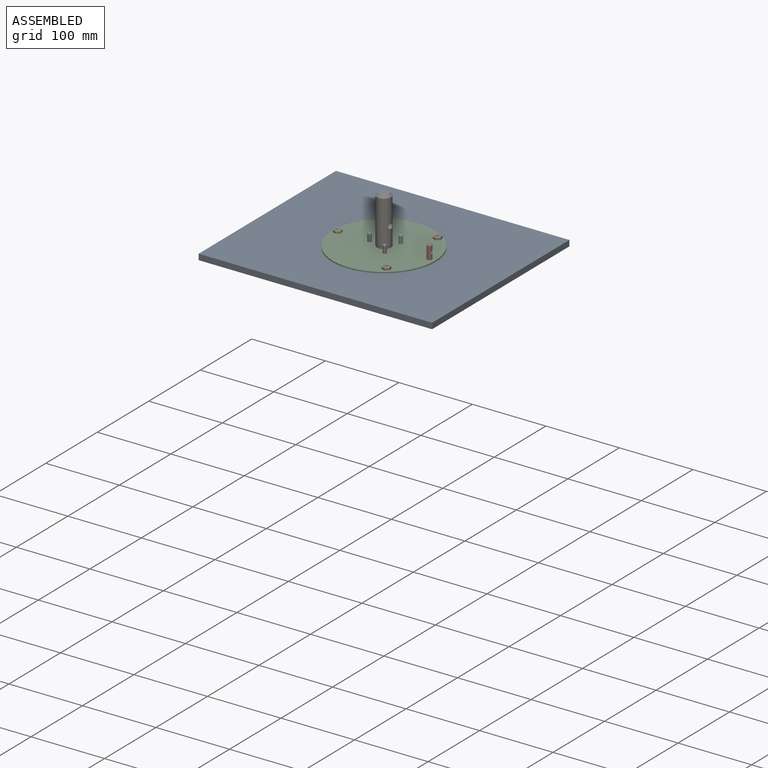
[diagram: assembled view]
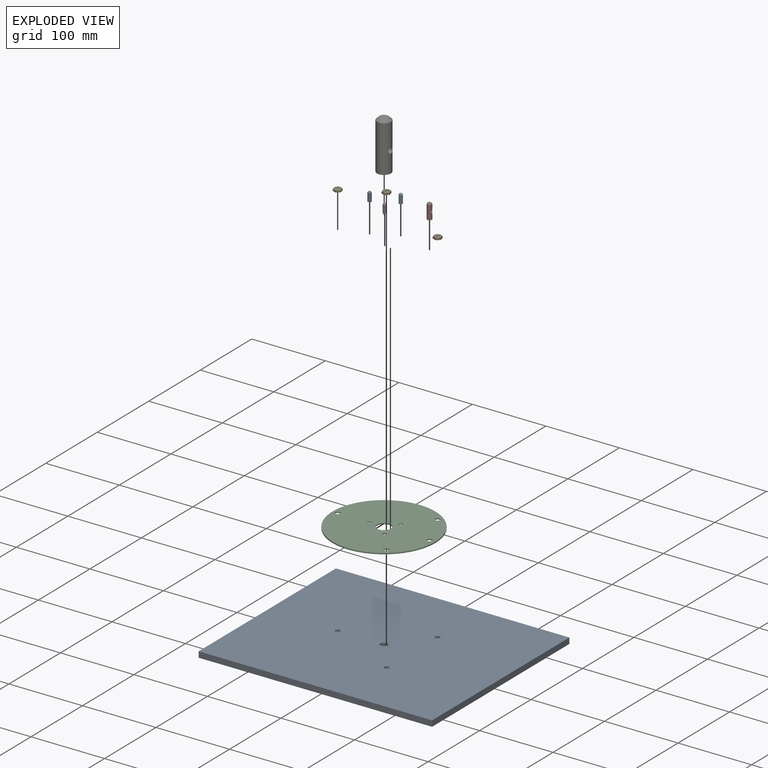
[diagram: exploded view]
GUIDED TOUR — MATED ASSEMBLY (Onshape document 5875152629a5ae1773e18e15, AutoMate assembly 5875152629a5ae1773e18e15_7c8e1c9a2186977687e85cd0_fa9db569864b751b0ebd2541_default)

This assembly has 10 components, labeled P0..P9 below (a component is one placed occurrence of a part; the same part can appear more than once), held together by 9 mates. A mate is a constraint between two components; its type names the relative motion it leaves free:
  FASTENED — locks the two components together rigidly (no relative motion).
Axis/direction vectors are unit vectors and 'through' points are millimeter coordinates, both in the assembly's world frame.

MATES
  1. FASTENED "Fastened 2": P2 <-> P7, direction (0.000, 0.000, -1.000) through (61.91, 0.00, 0.00) mm
  2. FASTENED "Fastened 7": P9 <-> P2, direction (0.000, 0.000, -1.000) through (38.10, 49.85, 1.59) mm
  3. FASTENED "Fastened 3": P2 <-> P5, direction (0.000, 0.000, -1.000) through (11.89, 15.59, 0.00) mm
  4. FASTENED "Fastened 9": P1 <-> P2, direction (0.000, 0.000, -1.000) through (37.22, -48.34, 1.59) mm
  5. FASTENED "Fastened 6": P8 <-> P6, direction (0.000, 0.000, 1.000) through (0.00, 0.00, 0.00) mm
  6. FASTENED "Fastened 5": P2 <-> P0, direction (0.000, 0.000, -1.000) through (-19.56, 0.00, 0.00) mm
  7. FASTENED "Fastened 1": P2 <-> P6, direction (0.000, 0.000, -1.000) through (0.00, 0.00, 0.00) mm
  8. FASTENED "Fastened 4": P2 <-> P3, direction (0.000, 0.000, -1.000) through (11.99, -15.56, 0.00) mm
  9. FASTENED "Fastened 8": P4 <-> P2, direction (0.000, 0.000, -1.000) through (-62.94, 0.00, 1.59) mm

ASSEMBLY ORDER
  1. P9 — the base component [order verified]
  2. P5 [order verified]
  3. P6 [order verified]
  4. P7 [order verified]
  5. P0 [order verified]
  6. P4 [order verified]
  7. P3 [order verified]
  8. P1 [order verified]
  9. P2 [order verified]
  10. P8 [order verified]
Order-tag legend:
  [order verified] — this step's position reverses a verified removal order: the component was checked to insert without passing through the ones already placed.

Of the 10 components, 4 carry the full construction recipe — the FeatureScript program that regenerates the part's solid from scratch; the rest are supplied as boundary geometry only.
Each toured component is shown spotlighted twice — in the assembled view, then in the exploded view, where a leader line traces a displaced component back to its assembled socket (saturated green if recipe-attached, orange if geometry-only; every other component desaturated gray) — followed by its recipe or geometry summary and the mates that hold it.
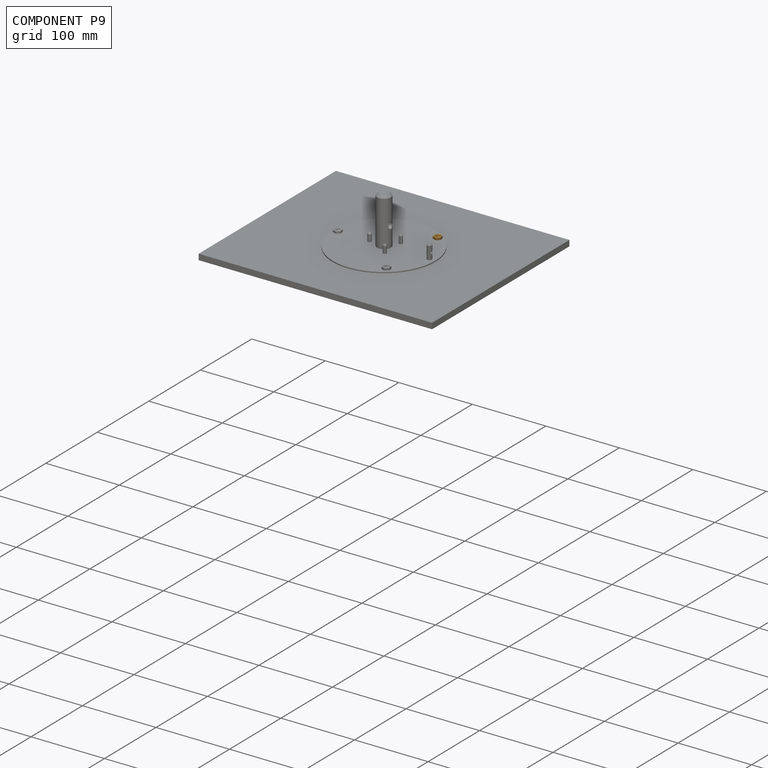
[diagram: component P9 — assembled]
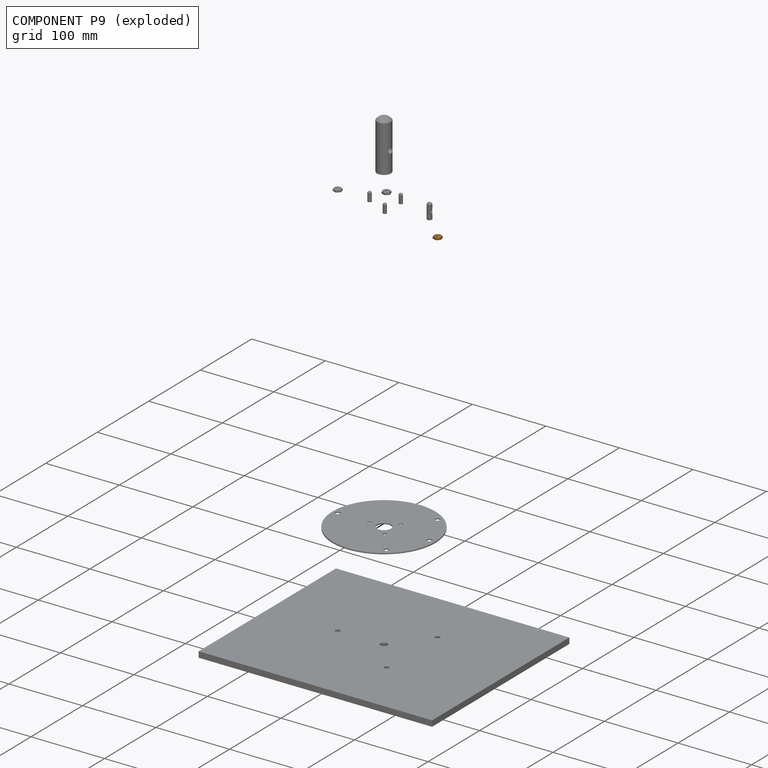
[diagram: component P9 — exploded]
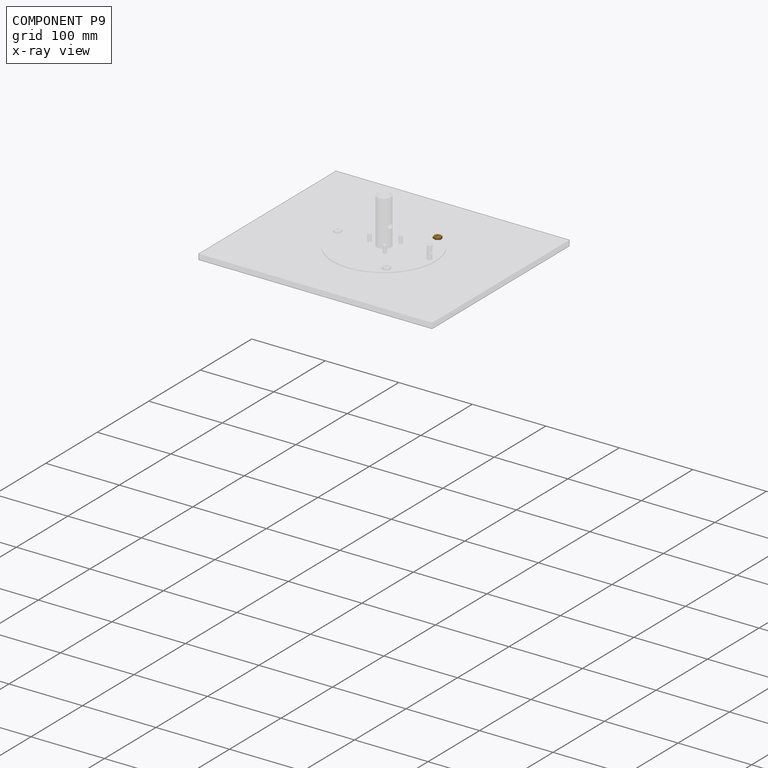
[diagram: component P9 — x-ray view]
COMPONENT P9 — geometry summary (no construction recipe available for this part):
  bounding box: 11.0 x 10.8 x 3.4 mm
  B-rep topology: 1 solid, 27 faces, 128 edges
  volume: 226 mm^3 (56% of its bounding box)
  symmetry: 2-fold rotationally symmetric about the z axis
Held by: FASTENED mate "Fastened 7" to P2.
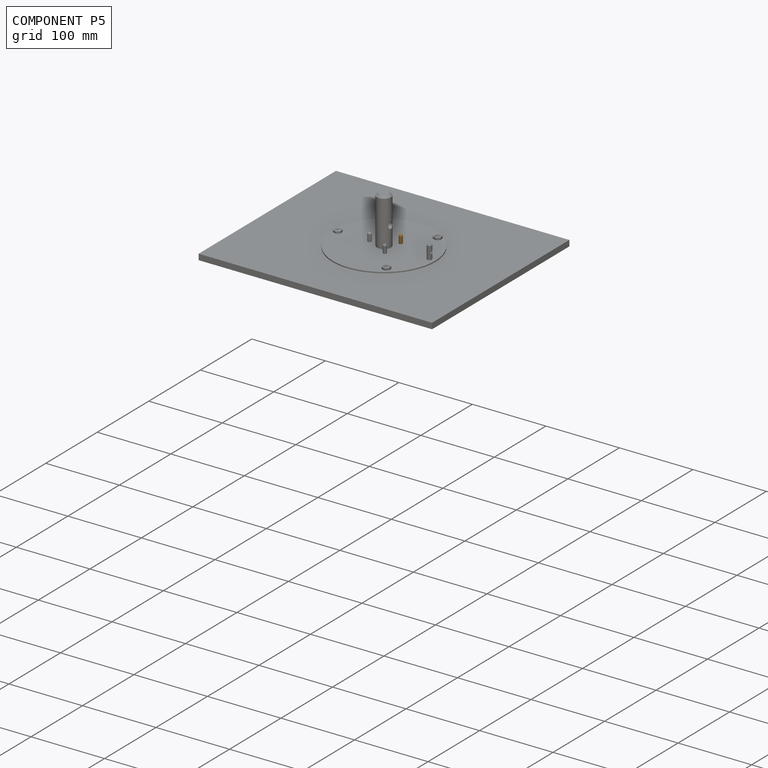
[diagram: component P5 — assembled]
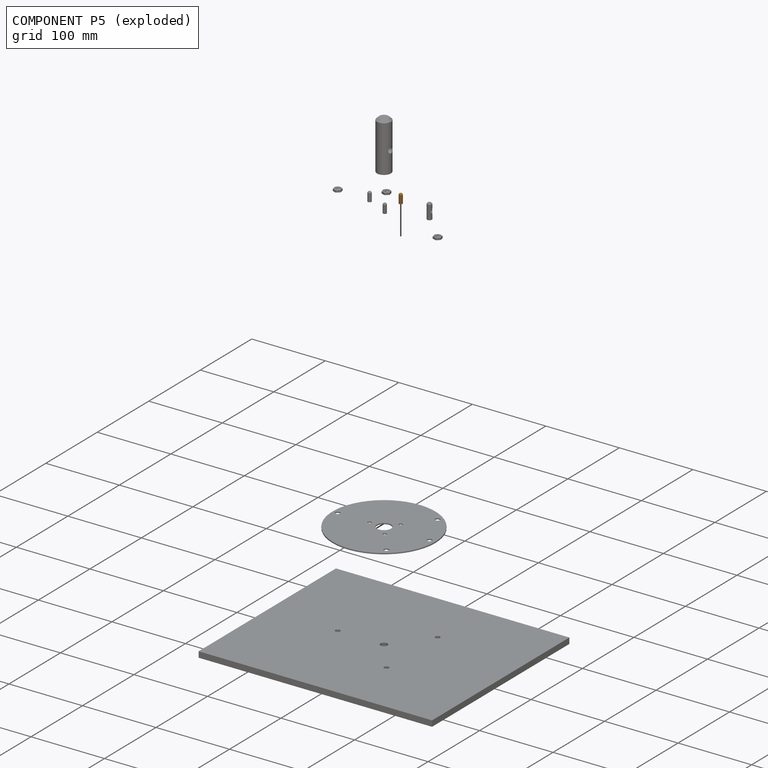
[diagram: component P5 — exploded]
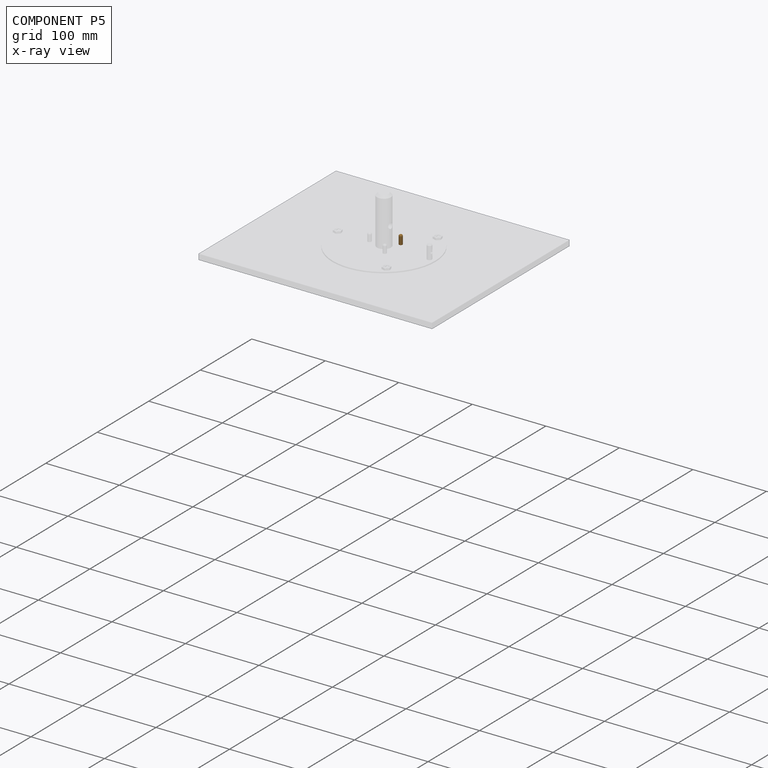
[diagram: component P5 — x-ray view]
COMPONENT P5 — geometry summary (no construction recipe available for this part):
  bounding box: 12.7 x 4.8 x 4.8 mm
  B-rep topology: 1 solid, 4 faces, 10 edges
  volume: 217 mm^3 (75% of its bounding box)
  symmetry: revolution-symmetric about the z axis through its bounding-box center; mirror-symmetric across its x mid-plane, y mid-plane
Held by: FASTENED mate "Fastened 3" to P2.
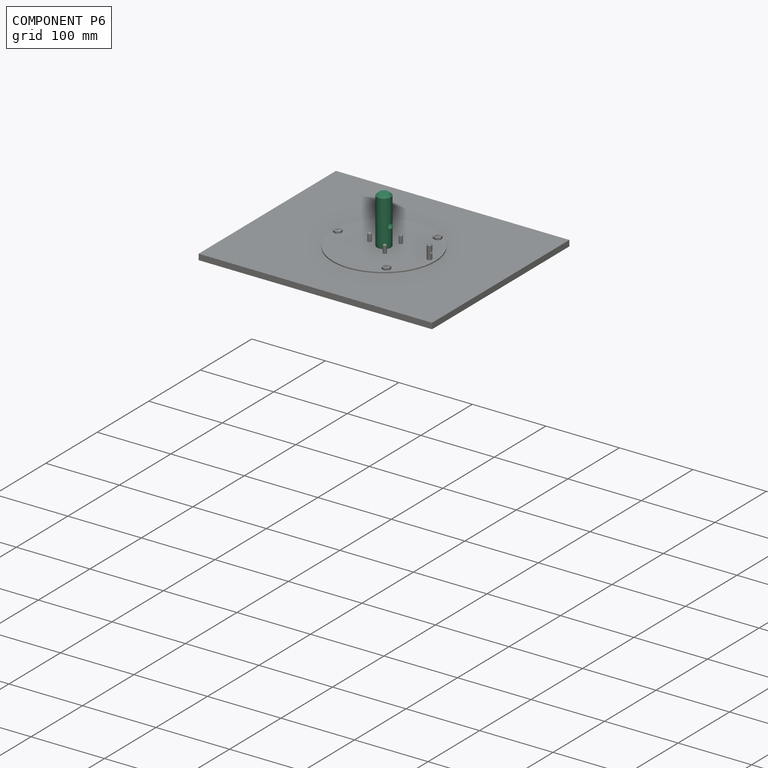
[diagram: component P6 — assembled]
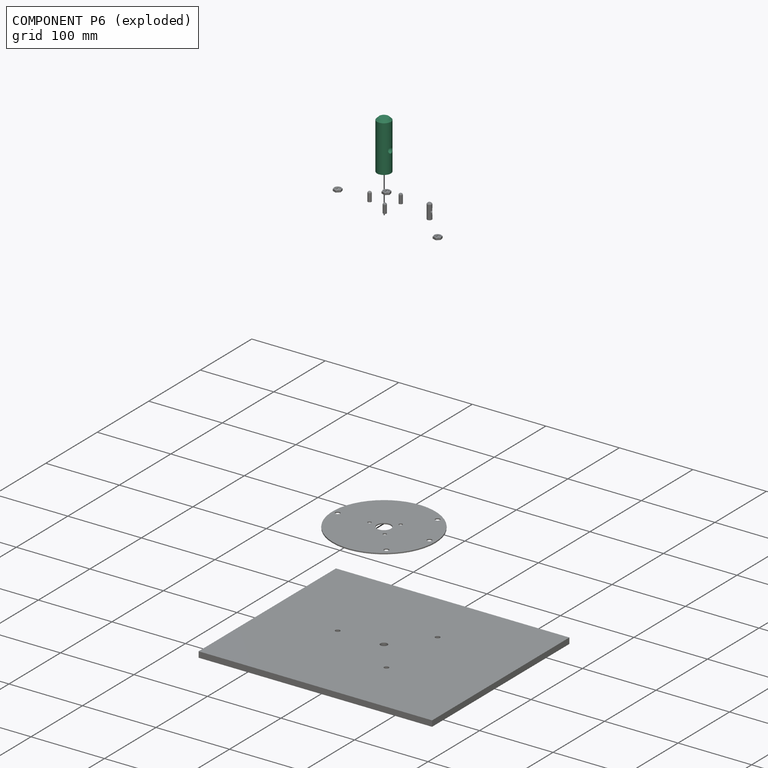
[diagram: component P6 — exploded]
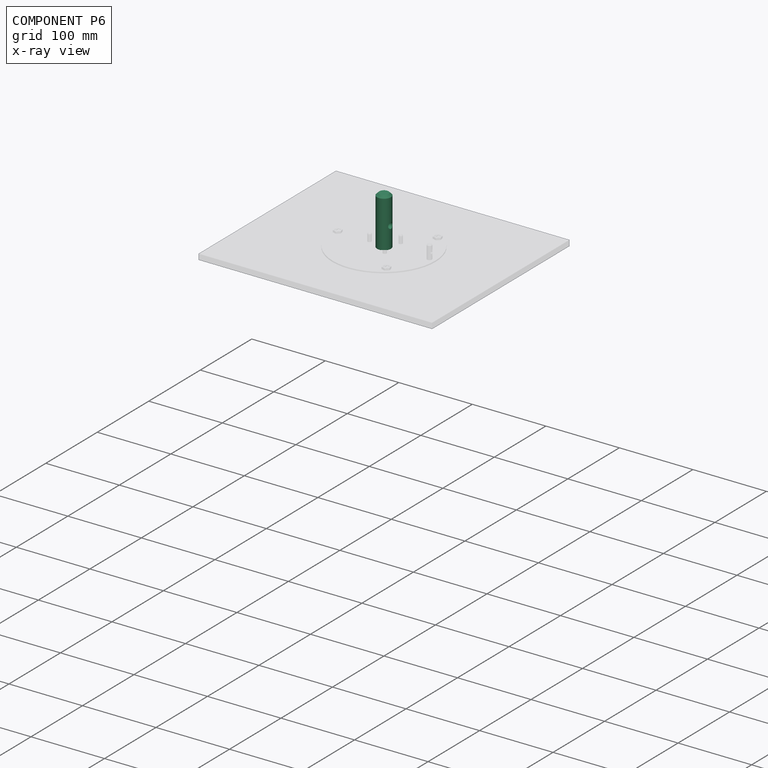
[diagram: component P6 — x-ray view]
COMPONENT P6 — recipe-attached (CADFS 00325563, mesh-verified: the recipe's output STEP matches this component's geometry to below the mesh-comparison resolution (tessellation chordal tolerance ~0.108 mm)).
Held by: FASTENED mate "Fastened 6" to P8; FASTENED mate "Fastened 1" to P2.
Construction recipe (FeatureScript — the CAD program that rebuilds this solid; sketch coordinates are in the units given by the * unit suffixes, e.g. mm):

FeatureScript 1511;
import(path : "onshape/std/geometry.fs", version : "1511.0");
import(path : "onshape/std/common.fs", version : "1511.0");
const mm = millimeter;
const VERTEX = EntityType.VERTEX;
const EDGE = EntityType.EDGE;
const FACE = EntityType.FACE;
const BODY = EntityType.BODY;
function v(x, y){return vector(x, y);}
function OD(order){return orderDisambiguation(order);}
function OSD(set){return originalSetDisambiguation(set);}
function TD(topology){return topologyDisambiguation(topology);}
function TDD(query){return trueDependencyDisambiguation(query);}
function sQuery(a, b, c) {return sketchEntityQuery(a, b, c);}

annotation { "Feature Type Name" : "Feature", "Feature Type Description" : "" }
export const myFeature = defineFeature(function(context is Context, id is Id, definition is map)
    precondition{}
    {
        {
            var Q0;
            Q0=qCreatedBy(makeId("Top.planeOp"),FACE);
            var sketch = newSketch(context, id + "F0", { "sketchPlane" : qUnion([Q0])});
            skCircle(sketch, "E0", {"center": v(0, 0) * mm, "radius": 9.53 * mm});
            skSolve(sketch);
        }
        {
            var Q0;
            Q0=makeQuery(id+"F0.imprint","IMPRINT",FACE,{"disambiguationData":[TD([[makeQuery(id+"F0.imprint","IMPRINT",EDGE,{"derivedFrom":sQuery(id+"F0.wireOp",EDGE,"E0")}),1.0]])]});
            extrude(context, id + "F1", {"entities" : qUnion([Q0]), "depth" : 66.67 * mm});
        }
        {
            var Q0;
            Q0=makeQuery(id+"F1.opExtrude","CAP_EDGE",EDGE,{"disambiguationData":[OSD([sQuery(id+"F0.wireOp",EDGE,"E0")])],"isStart":true});
            chamfer(context, id + "F2", {"entities" : qUnion([Q0]), "width" : 3.17 * mm, "tangentPropagation" : true});
        }
        {
            var Q0;
            Q0=qCreatedBy(makeId("Right.planeOp"),FACE);
            var sketch = newSketch(context, id + "F3", { "sketchPlane" : qUnion([Q0])});
            skLineSegment(sketch, "E1", {"start": v(7.94, 10.32) * mm, "end": v(7.94, 31.75) * mm});
            skLineSegment(sketch, "E2", {"start": v(7.94, 31.75) * mm, "end": v(42.7, 31.75) * mm});
            skLineSegment(sketch, "E3", {"start": v(42.7, 31.75) * mm, "end": v(42.7, 10.32) * mm});
            skLineSegment(sketch, "E4", {"start": v(42.7, 10.32) * mm, "end": v(7.94, 10.32) * mm});
            skLineSegment(sketch, "E5", {"start": v(9.53, 38.16) * mm, "end": v(9.53, 0) * mm});
            skLineSegment(sketch, "E6", {"start": v(4.75, 38.16) * mm, "end": v(4.75, 0) * mm});
            skCircle(sketch, "E7", {"center": v(0, 38.1) * mm, "radius": 3.97 * mm});
            skSolve(sketch);
        }
        {
            var Q0;
            {var subQ0=sQuery(id+"F3.wireOp",EDGE,"E3");Q0=makeQuery(id+"F3.imprint","IMPRINT",FACE,{"disambiguationData":[TD([[makeQuery(id+"F3.imprint","IMPRINT",EDGE,{"derivedFrom":subQ0}),-1.0]])]});}
            var Q1;
            {var subQ0=sQuery(id+"F3.wireOp",EDGE,"E1");Q1=makeQuery(id+"F3.imprint","IMPRINT",FACE,{"disambiguationData":[TD([[makeQuery(id+"F3.imprint","IMPRINT",EDGE,{"derivedFrom":subQ0}),-1.0]])]});}
            var Q2;
            Q2=makeQuery(id+"F3.imprint","IMPRINT",FACE,{"disambiguationData":[TD([[makeQuery(id+"F3.imprint","IMPRINT",EDGE,{"derivedFrom":sQuery(id+"F3.wireOp",EDGE,"E7")}),1.0]])]});
            extrude(context, id + "F4", {"entities" : qUnion([Q0, Q1, Q2]), "operationType" : NewBodyOperationType.REMOVE, "endBound" : BoundingType.SYMMETRIC, "depth" : 81.68 * mm});
        }
    });
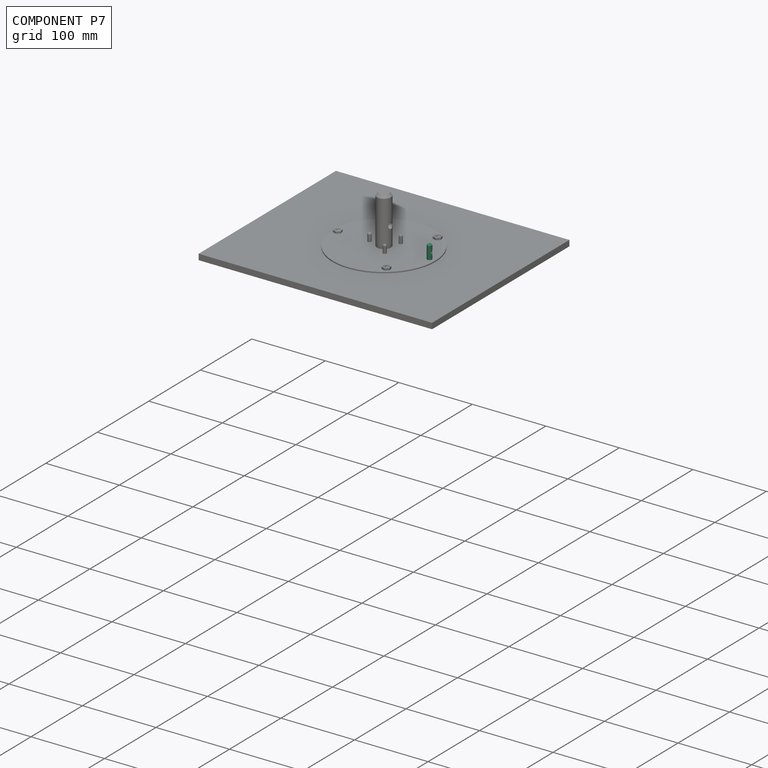
[diagram: component P7 — assembled]
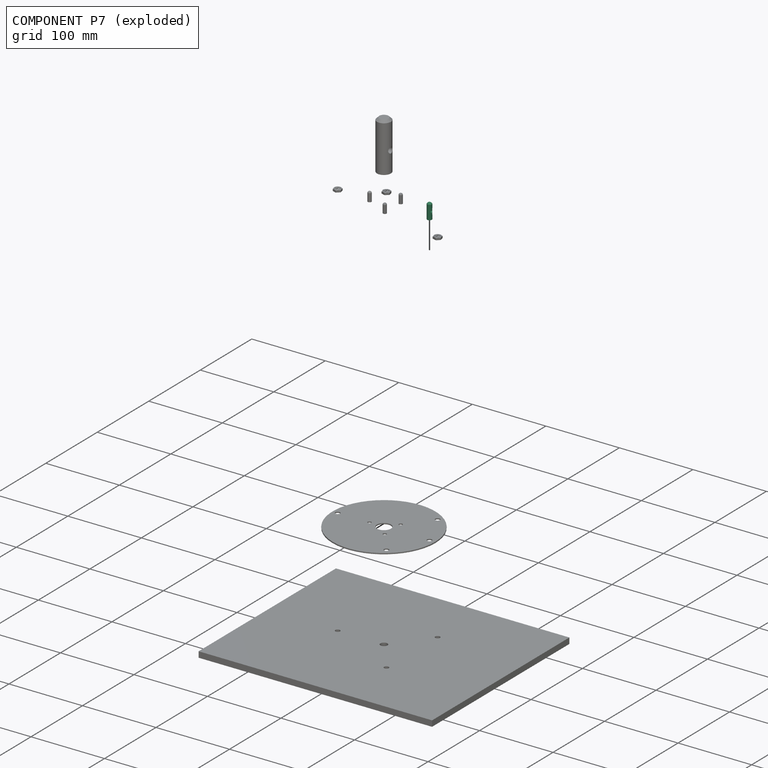
[diagram: component P7 — exploded]
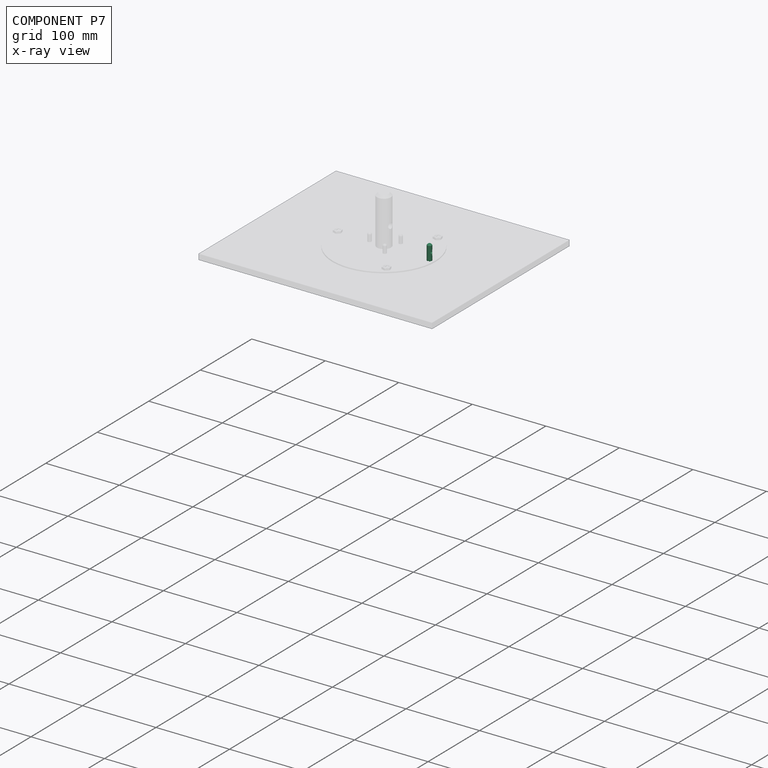
[diagram: component P7 — x-ray view]
COMPONENT P7 — recipe-attached (CADFS 00437336, mesh-verified: the recipe's output STEP matches this component's geometry to below the mesh-comparison resolution (tessellation chordal tolerance ~0.0338 mm)).
Held by: FASTENED mate "Fastened 2" to P2.
Construction recipe (FeatureScript — the CAD program that rebuilds this solid; sketch coordinates are in the units given by the * unit suffixes, e.g. mm):

FeatureScript 1511;
import(path : "onshape/std/geometry.fs", version : "1511.0");
import(path : "onshape/std/common.fs", version : "1511.0");
const mm = millimeter;
const VERTEX = EntityType.VERTEX;
const EDGE = EntityType.EDGE;
const FACE = EntityType.FACE;
const BODY = EntityType.BODY;
function v(x, y){return vector(x, y);}
function OD(order){return orderDisambiguation(order);}
function OSD(set){return originalSetDisambiguation(set);}
function TD(topology){return topologyDisambiguation(topology);}
function TDD(query){return trueDependencyDisambiguation(query);}
function sQuery(a, b, c) {return sketchEntityQuery(a, b, c);}

annotation { "Feature Type Name" : "Feature", "Feature Type Description" : "" }
export const myFeature = defineFeature(function(context is Context, id is Id, definition is map)
    precondition{}
    {
        {
            var Q0;
            Q0=qCreatedBy(makeId("Top.planeOp"),FACE);
            var sketch = newSketch(context, id + "F0", { "sketchPlane" : qUnion([Q0])});
            skCircle(sketch, "E0", {"center": v(0, 0) * mm, "radius": 3.18 * mm});
            skSolve(sketch);
        }
        {
            var Q0;
            Q0=makeQuery(id+"F0.imprint","IMPRINT",FACE,{"disambiguationData":[TD([[makeQuery(id+"F0.imprint","IMPRINT",EDGE,{"derivedFrom":sQuery(id+"F0.wireOp",EDGE,"E0")}),1.0]])]});
            extrude(context, id + "F1", {"entities" : qUnion([Q0]), "depth" : 20.64 * mm});
        }
        {
            var Q0;
            Q0=makeQuery(id+"F1.opExtrude","CAP_EDGE",EDGE,{"disambiguationData":[OSD([sQuery(id+"F0.wireOp",EDGE,"E0")])],"isStart":false});
            chamfer(context, id + "F2", {"entities" : qUnion([Q0]), "width" : 1.59 * mm, "tangentPropagation" : true});
        }
        {
            var Q0;
            Q0=qCreatedBy(makeId("Right.planeOp"),FACE);
            var sketch = newSketch(context, id + "F3", { "sketchPlane" : qUnion([Q0])});
            skCircle(sketch, "E1", {"center": v(0, 10.32) * mm, "radius": 1.59 * mm});
            skSolve(sketch);
        }
        {
            var Q0;
            Q0=qSketchRegion(id+"F3",true);
            extrude(context, id + "F4", {"entities" : qUnion([Q0]), "operationType" : NewBodyOperationType.REMOVE, "endBound" : BoundingType.SYMMETRIC, "depth" : 25.4 * mm});
        }
    });
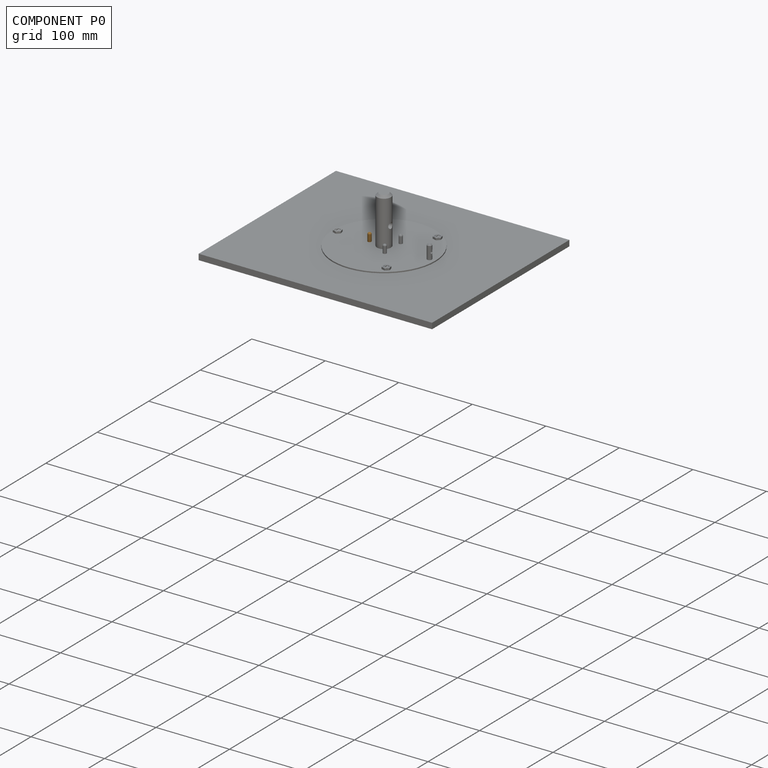
[diagram: component P0 — assembled]
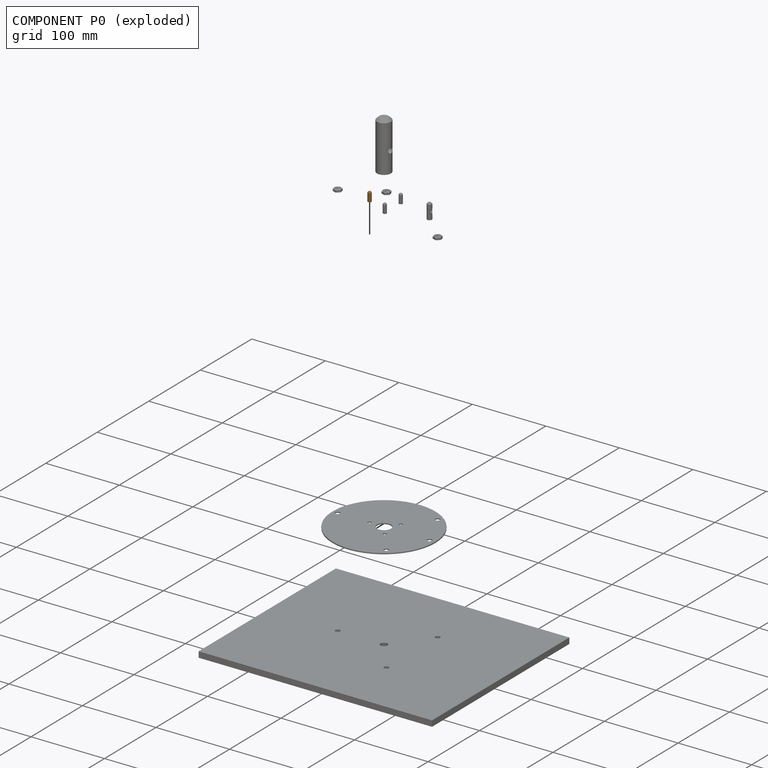
[diagram: component P0 — exploded]
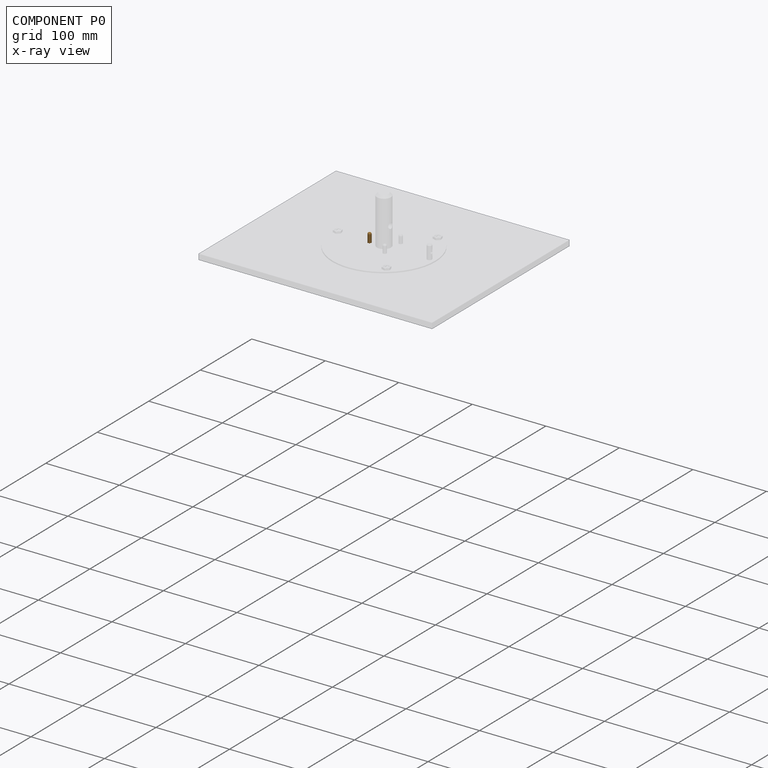
[diagram: component P0 — x-ray view]
COMPONENT P0 — geometry summary (no construction recipe available for this part):
  bounding box: 12.7 x 4.8 x 4.8 mm
  B-rep topology: 1 solid, 4 faces, 10 edges
  volume: 217 mm^3 (75% of its bounding box)
  symmetry: revolution-symmetric about the z axis through its bounding-box center; mirror-symmetric across its x mid-plane, y mid-plane
Held by: FASTENED mate "Fastened 5" to P2.
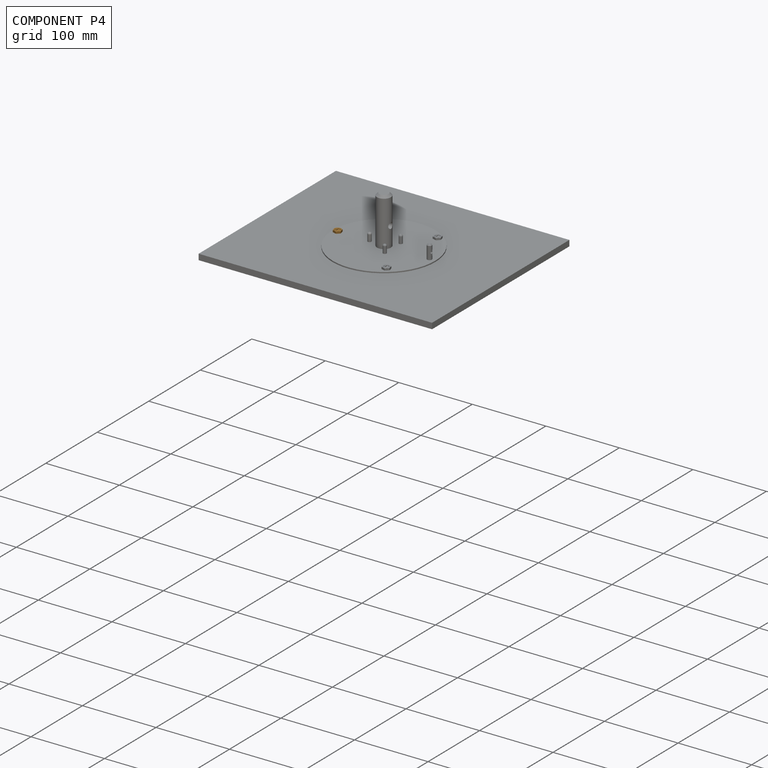
[diagram: component P4 — assembled]
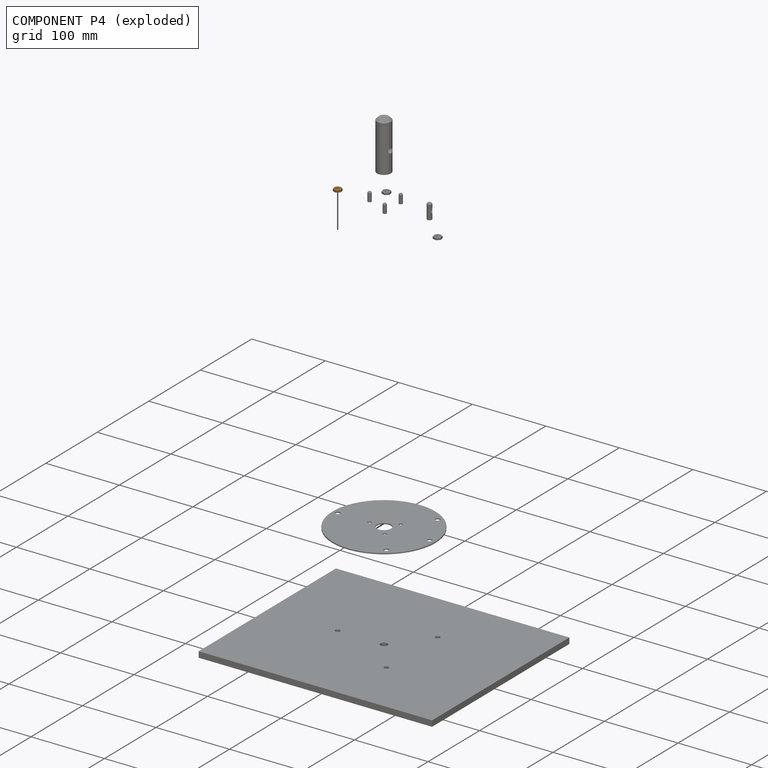
[diagram: component P4 — exploded]
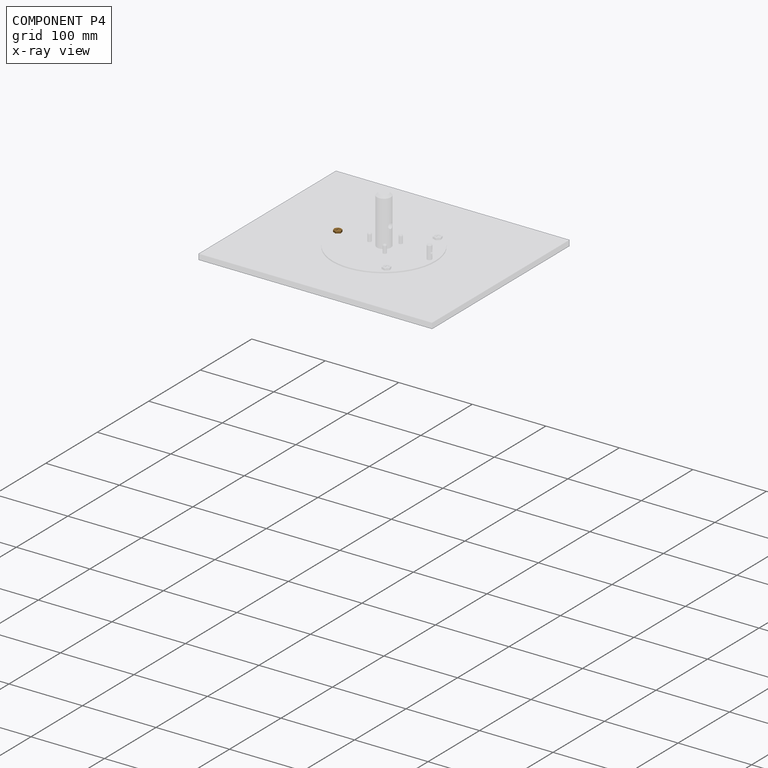
[diagram: component P4 — x-ray view]
COMPONENT P4 — geometry summary (no construction recipe available for this part):
  bounding box: 11.0 x 10.8 x 3.4 mm
  B-rep topology: 1 solid, 27 faces, 128 edges
  volume: 226 mm^3 (56% of its bounding box)
  symmetry: 2-fold rotationally symmetric about the z axis
Held by: FASTENED mate "Fastened 8" to P2.
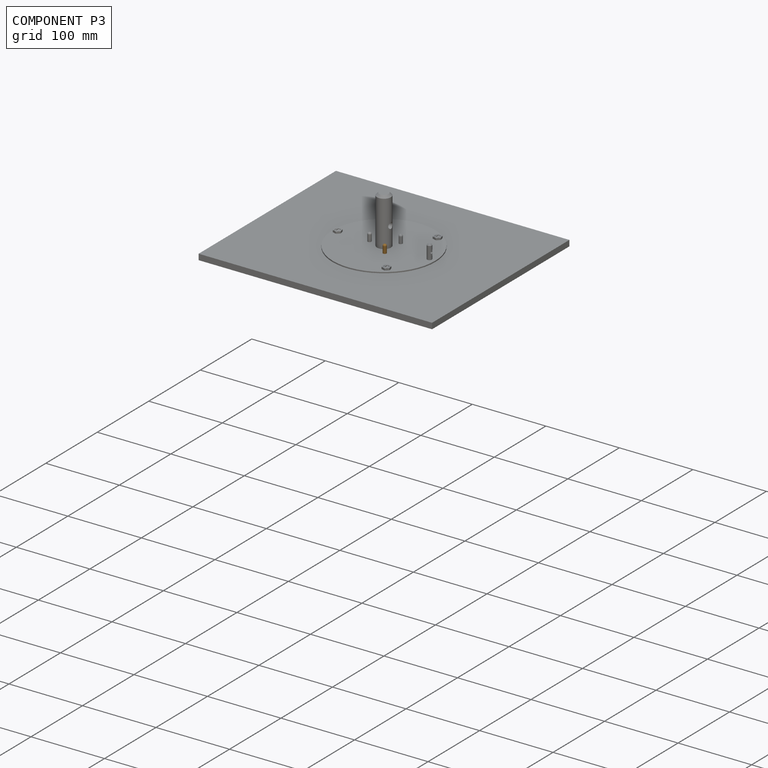
[diagram: component P3 — assembled]
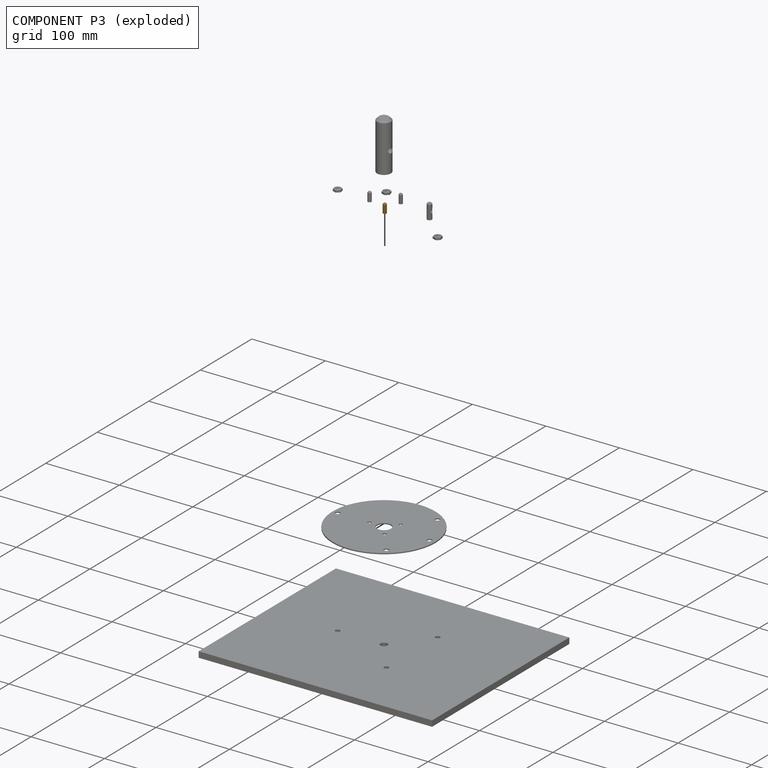
[diagram: component P3 — exploded]
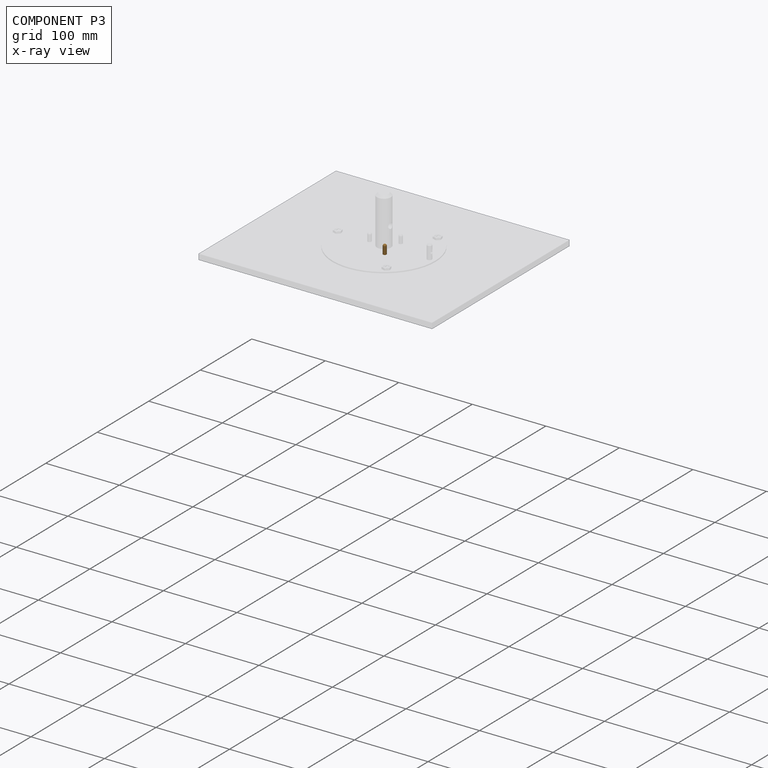
[diagram: component P3 — x-ray view]
COMPONENT P3 — geometry summary (no construction recipe available for this part):
  bounding box: 12.7 x 4.8 x 4.8 mm
  B-rep topology: 1 solid, 4 faces, 10 edges
  volume: 217 mm^3 (75% of its bounding box)
  symmetry: revolution-symmetric about the z axis through its bounding-box center; mirror-symmetric across its x mid-plane, y mid-plane
Held by: FASTENED mate "Fastened 4" to P2.
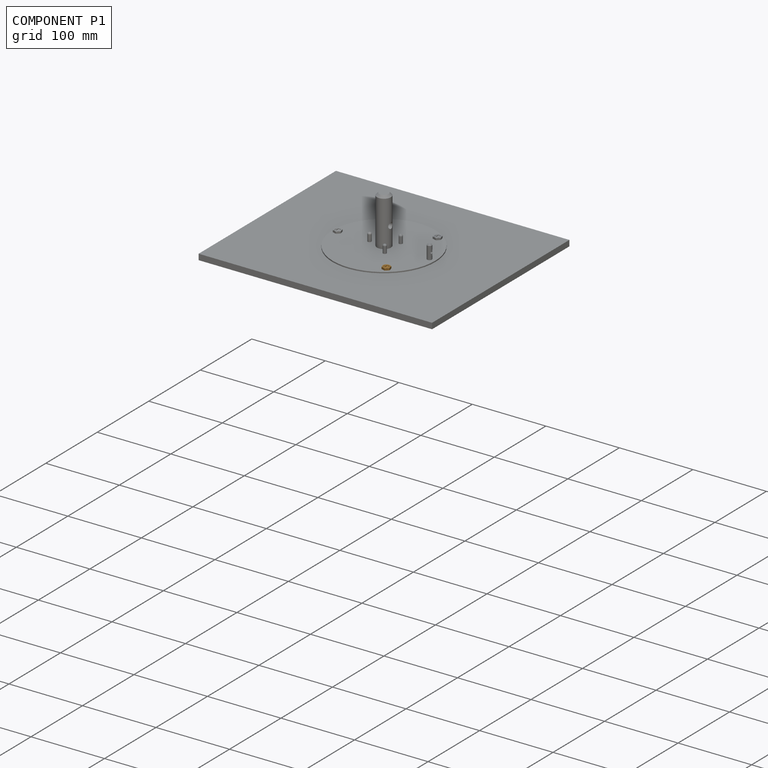
[diagram: component P1 — assembled]
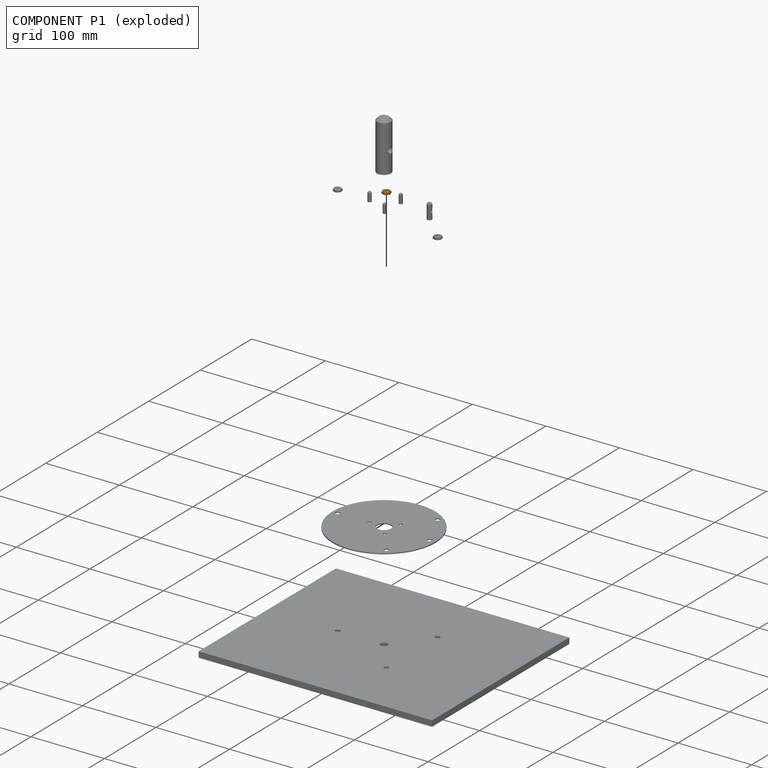
[diagram: component P1 — exploded]
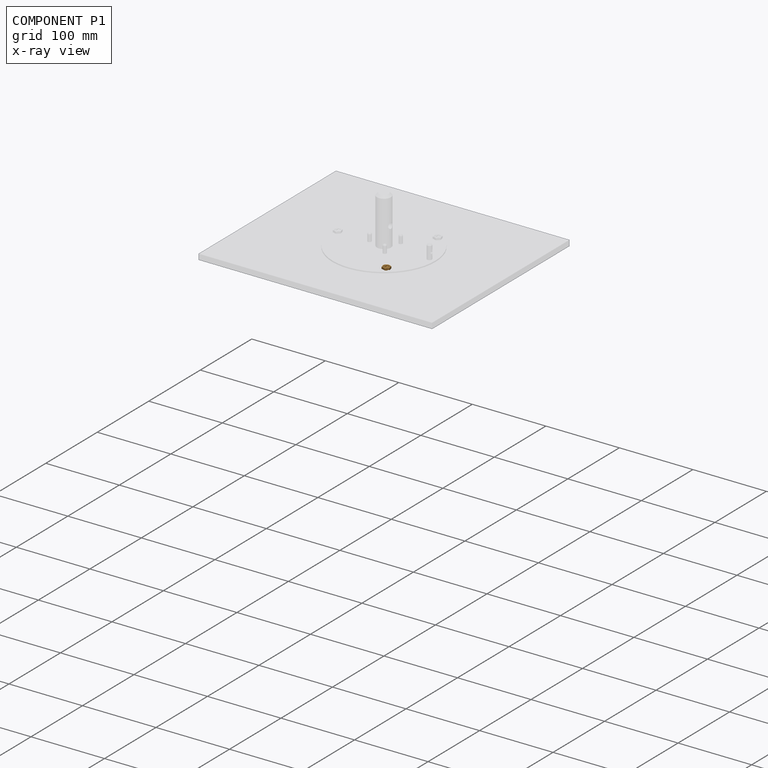
[diagram: component P1 — x-ray view]
COMPONENT P1 — geometry summary (no construction recipe available for this part):
  bounding box: 11.0 x 10.8 x 3.4 mm
  B-rep topology: 1 solid, 27 faces, 128 edges
  volume: 226 mm^3 (56% of its bounding box)
  symmetry: 2-fold rotationally symmetric about the z axis
Held by: FASTENED mate "Fastened 9" to P2.
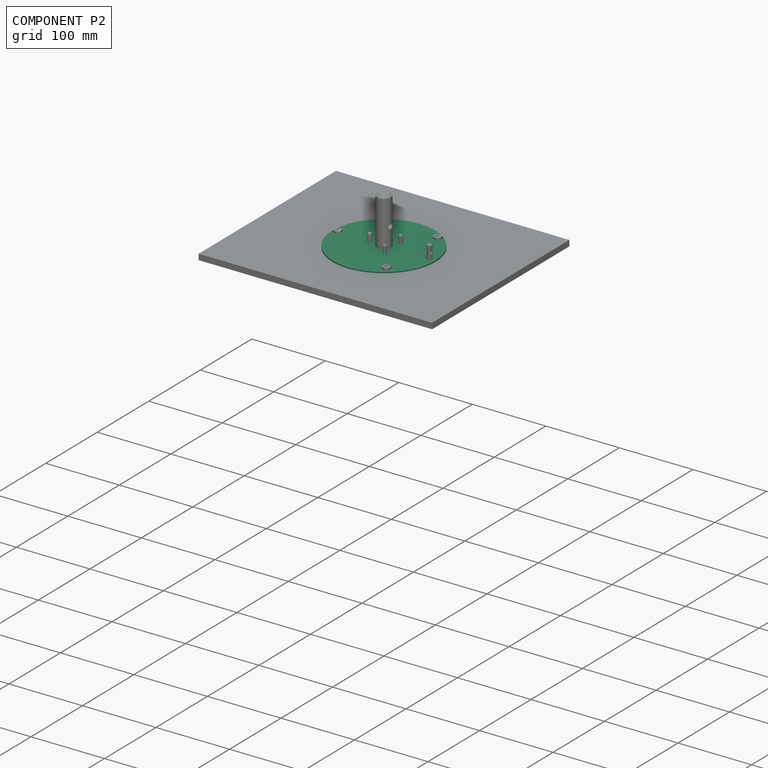
[diagram: component P2 — assembled]
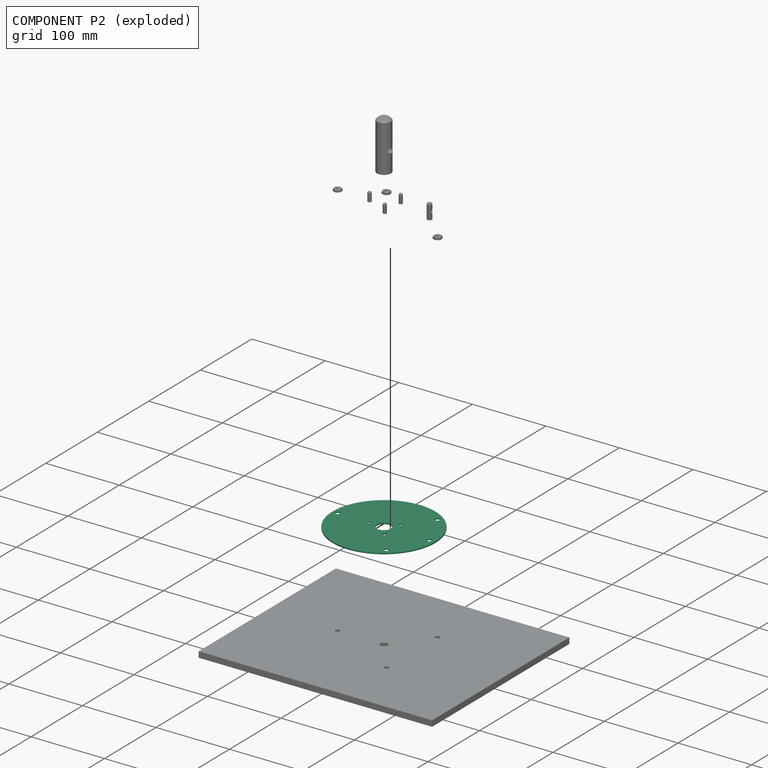
[diagram: component P2 — exploded]
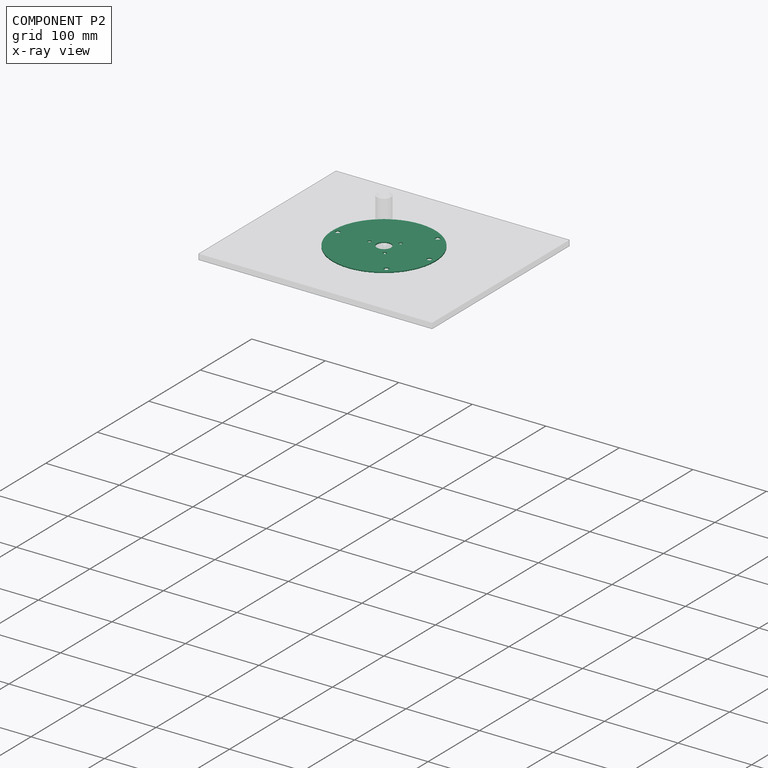
[diagram: component P2 — x-ray view]
COMPONENT P2 — recipe-attached (CADFS 00437339, mesh-verified: the recipe's output STEP matches this component's geometry to below the mesh-comparison resolution (tessellation chordal tolerance ~0.296 mm)).
Held by: FASTENED mate "Fastened 2" to P7; FASTENED mate "Fastened 7" to P9; FASTENED mate "Fastened 3" to P5; FASTENED mate "Fastened 9" to P1; FASTENED mate "Fastened 5" to P0; FASTENED mate "Fastened 1" to P6; FASTENED mate "Fastened 4" to P3; FASTENED mate "Fastened 8" to P4.
Construction recipe (FeatureScript — the CAD program that rebuilds this solid; sketch coordinates are in the units given by the * unit suffixes, e.g. mm):

FeatureScript 1511;
import(path : "onshape/std/geometry.fs", version : "1511.0");
import(path : "onshape/std/common.fs", version : "1511.0");
const mm = millimeter;
const VERTEX = EntityType.VERTEX;
const EDGE = EntityType.EDGE;
const FACE = EntityType.FACE;
const BODY = EntityType.BODY;
function v(x, y){return vector(x, y);}
function OD(order){return orderDisambiguation(order);}
function OSD(set){return originalSetDisambiguation(set);}
function TD(topology){return topologyDisambiguation(topology);}
function TDD(query){return trueDependencyDisambiguation(query);}
function sQuery(a, b, c) {return sketchEntityQuery(a, b, c);}

annotation { "Feature Type Name" : "Feature", "Feature Type Description" : "" }
export const myFeature = defineFeature(function(context is Context, id is Id, definition is map)
    precondition{}
    {
        {
            var Q0;
            Q0=qCreatedBy(makeId("Top.planeOp"),FACE);
            var sketch = newSketch(context, id + "F0", { "sketchPlane" : qUnion([Q0])});
            skPoint(sketch, "E0.start.orphan", {"position": v(0, -587.38) * mm});
            skLineSegment(sketch, "E1", {"start": v(0, 0) * mm, "end": v(-102.34, 0) * mm, "construction": true});
            skLineSegment(sketch, "E2", {"start": v(0, 0) * mm, "end": v(180.46, 0) * mm, "construction": true});
            skLineSegment(sketch, "E3", {"start": v(0, -149.74) * mm, "end": v(0, 151.2) * mm, "construction": true});
            skCircle(sketch, "E4", {"center": v(0, 0) * mm, "radius": 9.53 * mm});
            skCircle(sketch, "E5", {"center": v(-19.56, 0) * mm, "radius": 2.38 * mm});
            skCircle(sketch, "E6", {"center": v(0, 0) * mm, "radius": 17.22 * mm});
            skCircle(sketch, "E7", {"center": v(11.9, 15.59) * mm, "radius": 2.39 * mm});
            skCircle(sketch, "E8", {"center": v(12, -15.56) * mm, "radius": 2.39 * mm});
            skLineSegment(sketch, "E9", {"start": v(9.53, 0) * mm, "end": v(9.53, 25.1) * mm, "construction": true});
            skLineSegment(sketch, "E10", {"start": v(9.53, 0) * mm, "end": v(9.53, -24.17) * mm, "construction": true});
            skCircle(sketch, "E11", {"center": v(61.91, 0) * mm, "radius": 3.18 * mm});
            skCircle(sketch, "E12", {"center": v(0, 0) * mm, "radius": 69.85 * mm});
            skCircle(sketch, "E13", {"center": v(-62.94, 0) * mm, "radius": 3.18 * mm});
            skLineSegment(sketch, "E14", {"start": v(0, 0) * mm, "end": v(55.59, -72.2) * mm, "construction": true});
            skLineSegment(sketch, "E15", {"start": v(0, 0) * mm, "end": v(50.13, 65.58) * mm, "construction": true});
            skCircle(sketch, "E16", {"center": v(38.1, 49.85) * mm, "radius": 3.18 * mm});
            skCircle(sketch, "E17", {"center": v(37.22, -48.34) * mm, "radius": 3.18 * mm});
            skSolve(sketch);
        }
        {
            var Q0;
            Q0=makeQuery(id+"F0.imprint","IMPRINT",FACE,{"disambiguationData":[TD([[makeQuery(id+"F0.imprint","IMPRINT",EDGE,{"derivedFrom":sQuery(id+"F0.wireOp",EDGE,"E4")}),-1.0]])]});
            var Q1;
            Q1=makeQuery(id+"F0.imprint","IMPRINT",FACE,{"disambiguationData":[TD([[makeQuery(id+"F0.imprint","IMPRINT",EDGE,{"derivedFrom":sQuery(id+"F0.wireOp",EDGE,"E8")}),-1.0]])]});
            extrude(context, id + "F1", {"entities" : qUnion([Q0, Q1]), "depth" : 1.59 * mm});
        }
    });
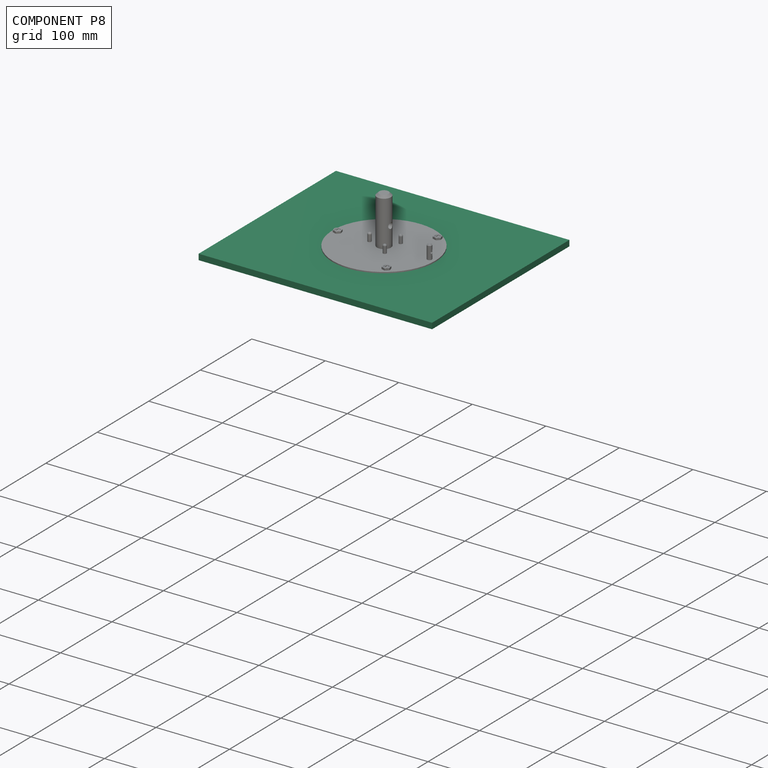
[diagram: component P8 — assembled]
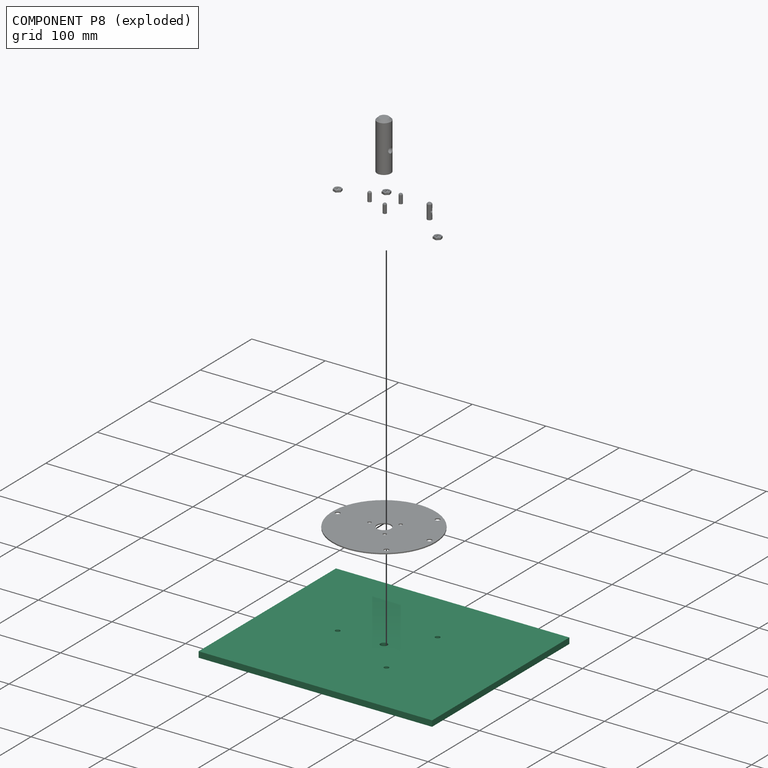
[diagram: component P8 — exploded]
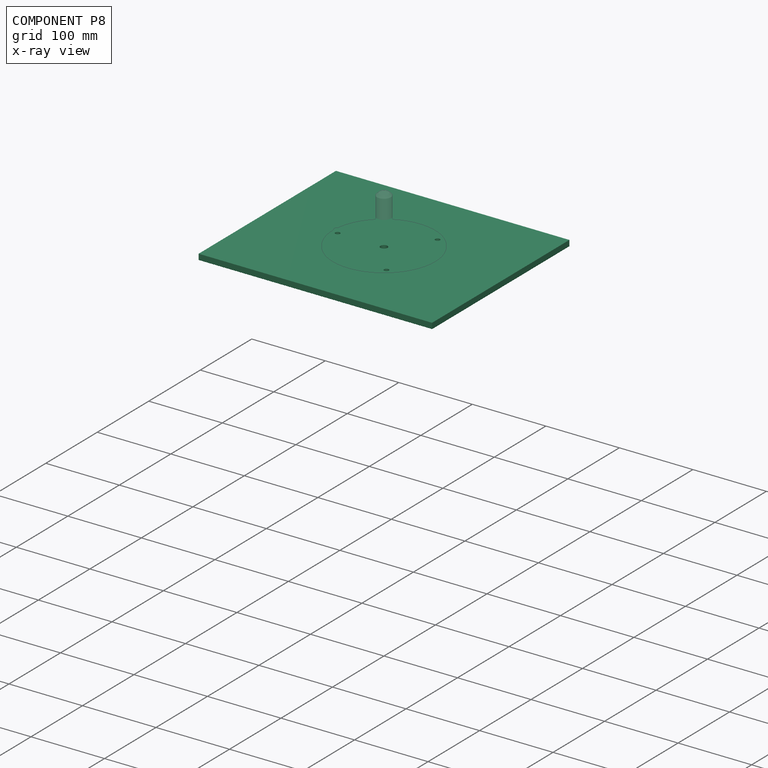
[diagram: component P8 — x-ray view]
COMPONENT P8 — recipe-attached (CADFS 00437343, mesh-verified: the recipe's output STEP matches this component's geometry to below the mesh-comparison resolution (tessellation chordal tolerance ~0.622 mm)).
Held by: FASTENED mate "Fastened 6" to P6.
Construction recipe (FeatureScript — the CAD program that rebuilds this solid; sketch coordinates are in the units given by the * unit suffixes, e.g. mm):

FeatureScript 1511;
import(path : "onshape/std/geometry.fs", version : "1511.0");
import(path : "onshape/std/common.fs", version : "1511.0");
const mm = millimeter;
const VERTEX = EntityType.VERTEX;
const EDGE = EntityType.EDGE;
const FACE = EntityType.FACE;
const BODY = EntityType.BODY;
function v(x, y){return vector(x, y);}
function OD(order){return orderDisambiguation(order);}
function OSD(set){return originalSetDisambiguation(set);}
function TD(topology){return topologyDisambiguation(topology);}
function TDD(query){return trueDependencyDisambiguation(query);}
function sQuery(a, b, c) {return sketchEntityQuery(a, b, c);}

annotation { "Feature Type Name" : "Feature", "Feature Type Description" : "" }
export const myFeature = defineFeature(function(context is Context, id is Id, definition is map)
    precondition{}
    {
        {
            var Q0;
            Q0=qCreatedBy(makeId("Top.planeOp"),FACE);
            var sketch = newSketch(context, id + "F0", { "sketchPlane" : qUnion([Q0])});
            skLineSegment(sketch, "E0.bottom", {"start": v(-158.69, 133.37) * mm, "end": v(158.81, 133.37) * mm});
            skLineSegment(sketch, "E0.top", {"start": v(-158.69, -133.33) * mm, "end": v(158.81, -133.33) * mm});
            skLineSegment(sketch, "E0.left", {"start": v(-158.69, 133.37) * mm, "end": v(-158.69, -133.33) * mm});
            skLineSegment(sketch, "E0.right", {"start": v(158.81, 133.37) * mm, "end": v(158.81, -133.33) * mm});
            skPoint(sketch, "E1", {"position": v(0.06, -133.33) * mm});
            skPoint(sketch, "E2", {"position": v(158.81, 0.02) * mm});
            skCircle(sketch, "E3", {"center": v(0, 0) * mm, "radius": 4.76 * mm});
            skCircle(sketch, "E4", {"center": v(-62.95, 0) * mm, "radius": 3.18 * mm});
            skCircle(sketch, "E5", {"center": v(38.1, 49.85) * mm, "radius": 3.18 * mm});
            skCircle(sketch, "E6", {"center": v(37.2, -48.34) * mm, "radius": 3.18 * mm});
            skSolve(sketch);
        }
        {
            var Q0;
            {var subQ1=sQuery(id+"F0.wireOp",EDGE,"E0.top");var subQ6=sQuery(id+"F0.wireOp",EDGE,"E0.left");var subQ9=makeQuery(id+"F0.imprint","INTERSECT",VERTEX,{"derivedFrom":[subQ1,subQ6]});Q0=makeQuery(id+"F0.imprint","IMPRINT",FACE,{"disambiguationData":[TD([[makeQuery(id+"F0.imprint","IMPRINT",EDGE,{"disambiguationData":[TD([[subQ9,-1.0]])],"derivedFrom":subQ1}),1.0]])]});}
            var Q1;
            {var subQ5=sQuery(id+"F0.wireOp",EDGE,"E0.top");var subQ7=sQuery(id+"F0.wireOp",EDGE,"JAwSw2JL-n3NN-2Vln-OLVn-L8GvoOgm2xYq");var subQ8=makeQuery(id+"F0.imprint","INTERSECT",VERTEX,{"derivedFrom":[subQ5,subQ7]});Q1=makeQuery(id+"F0.imprint","IMPRINT",FACE,{"disambiguationData":[TD([[makeQuery(id+"F0.imprint","IMPRINT",EDGE,{"disambiguationData":[TD([[subQ8,-1.0]])],"derivedFrom":subQ5}),1.0]])]});}
            var Q2;
            {var subQ1=sQuery(id+"F0.wireOp",EDGE,"E3");var subQ5=sQuery(id+"F0.wireOp",EDGE,"23pqLXLV-SrZZ-kslz-O0l0-19fHHKHyzlwI");var subQ6=makeQuery(id+"F0.imprint","INTERSECT",VERTEX,{"disambiguationData":[OD(1.0)],"derivedFrom":[subQ1,subQ5]});Q2=makeQuery(id+"F0.imprint","IMPRINT",FACE,{"disambiguationData":[TD([[makeQuery(id+"F0.imprint","IMPRINT",EDGE,{"disambiguationData":[TD([[subQ6,-1.0]])],"derivedFrom":subQ1}),-1.0]])]});}
            var Q3;
            {var subQ1=sQuery(id+"F0.wireOp",EDGE,"E0.left");var subQ5=sQuery(id+"F0.wireOp",EDGE,"23pqLXLV-SrZZ-kslz-O0l0-19fHHKHyzlwI");var subQ6=makeQuery(id+"F0.imprint","INTERSECT",VERTEX,{"derivedFrom":[subQ1,subQ5]});Q3=makeQuery(id+"F0.imprint","IMPRINT",FACE,{"disambiguationData":[TD([[makeQuery(id+"F0.imprint","IMPRINT",EDGE,{"disambiguationData":[TD([[subQ6,-1.0]])],"derivedFrom":subQ1}),1.0]])]});}
            var Q4;
            {var subQ1=sQuery(id+"F0.wireOp",EDGE,"E0.left");var subQ5=sQuery(id+"F0.wireOp",EDGE,"ks5EaK8h-8Zo1-6vaX-m6YF-OaYFmNDyZiSu");var subQ6=makeQuery(id+"F0.imprint","INTERSECT",VERTEX,{"derivedFrom":[subQ1,subQ5]});Q4=makeQuery(id+"F0.imprint","IMPRINT",FACE,{"disambiguationData":[TD([[makeQuery(id+"F0.imprint","IMPRINT",EDGE,{"disambiguationData":[TD([[subQ6,-1.0]])],"derivedFrom":subQ1}),1.0]])]});}
            var Q5;
            {var subQ0=sQuery(id+"F0.wireOp",EDGE,"OUGwM7Ne-J0Vz-JpQP-Of8x-XZFFkOnO35nF");var subQ1=sQuery(id+"F0.wireOp",EDGE,"E3");var subQ2=makeQuery(id+"F0.imprint","INTERSECT",VERTEX,{"disambiguationData":[OD(0.0)],"derivedFrom":[subQ1,subQ0]});Q5=makeQuery(id+"F0.imprint","IMPRINT",FACE,{"disambiguationData":[TD([[makeQuery(id+"F0.imprint","IMPRINT",EDGE,{"disambiguationData":[TD([[subQ2,-1.0]])],"derivedFrom":subQ1}),-1.0]])]});}
            var Q6;
            {var subQ1=sQuery(id+"F0.wireOp",EDGE,"E0.bottom");var subQ5=sQuery(id+"F0.wireOp",EDGE,"JAwSw2JL-n3NN-2Vln-OLVn-L8GvoOgm2xYq");var subQ6=makeQuery(id+"F0.imprint","INTERSECT",VERTEX,{"derivedFrom":[subQ1,subQ5]});Q6=makeQuery(id+"F0.imprint","IMPRINT",FACE,{"disambiguationData":[TD([[makeQuery(id+"F0.imprint","IMPRINT",EDGE,{"disambiguationData":[TD([[subQ6,-1.0]])],"derivedFrom":subQ1}),-1.0]])]});}
            var Q7;
            {var subQ1=sQuery(id+"F0.wireOp",EDGE,"E0.left");var subQ5=sQuery(id+"F0.wireOp",EDGE,"E0.bottom");var subQ6=makeQuery(id+"F0.imprint","INTERSECT",VERTEX,{"derivedFrom":[subQ5,subQ1]});Q7=makeQuery(id+"F0.imprint","IMPRINT",FACE,{"disambiguationData":[TD([[makeQuery(id+"F0.imprint","IMPRINT",EDGE,{"disambiguationData":[TD([[subQ6,-1.0]])],"derivedFrom":subQ5}),-1.0]])]});}
            var Q8;
            {var subQ1=sQuery(id+"F0.wireOp",EDGE,"E0.right");var subQ6=sQuery(id+"F0.wireOp",EDGE,"E0.bottom");var subQ9=makeQuery(id+"F0.imprint","INTERSECT",VERTEX,{"derivedFrom":[subQ6,subQ1]});Q8=makeQuery(id+"F0.imprint","IMPRINT",FACE,{"disambiguationData":[TD([[makeQuery(id+"F0.imprint","IMPRINT",EDGE,{"disambiguationData":[TD([[subQ9,1.0]])],"derivedFrom":subQ6}),-1.0]])]});}
            var Q9;
            {var subQ1=sQuery(id+"F0.wireOp",EDGE,"E0.bottom");var subQ5=sQuery(id+"F0.wireOp",EDGE,"OUGwM7Ne-J0Vz-JpQP-Of8x-XZFFkOnO35nF");var subQ6=makeQuery(id+"F0.imprint","INTERSECT",VERTEX,{"derivedFrom":[subQ1,subQ5]});Q9=makeQuery(id+"F0.imprint","IMPRINT",FACE,{"disambiguationData":[TD([[makeQuery(id+"F0.imprint","IMPRINT",EDGE,{"disambiguationData":[TD([[subQ6,-1.0]])],"derivedFrom":subQ1}),-1.0]])]});}
            var Q10;
            {var subQ7=sQuery(id+"F0.wireOp",EDGE,"OUGwM7Ne-J0Vz-JpQP-Of8x-XZFFkOnO35nF");var subQ8=sQuery(id+"F0.wireOp",EDGE,"E3");var subQ9=makeQuery(id+"F0.imprint","INTERSECT",VERTEX,{"disambiguationData":[OD(0.0)],"derivedFrom":[subQ8,subQ7]});Q10=makeQuery(id+"F0.imprint","IMPRINT",FACE,{"disambiguationData":[TD([[makeQuery(id+"F0.imprint","IMPRINT",EDGE,{"disambiguationData":[TD([[subQ9,1.0]])],"derivedFrom":subQ8}),-1.0]])]});}
            var Q11;
            {var subQ0=sQuery(id+"F0.wireOp",EDGE,"ks5EaK8h-8Zo1-6vaX-m6YF-OaYFmNDyZiSu");var subQ1=sQuery(id+"F0.wireOp",EDGE,"E0.right");var subQ2=makeQuery(id+"F0.imprint","INTERSECT",VERTEX,{"derivedFrom":[subQ1,subQ0]});Q11=makeQuery(id+"F0.imprint","IMPRINT",FACE,{"disambiguationData":[TD([[makeQuery(id+"F0.imprint","IMPRINT",EDGE,{"disambiguationData":[TD([[subQ2,-1.0]])],"derivedFrom":subQ1}),-1.0]])]});}
            var Q12;
            {var subQ0=sQuery(id+"F0.wireOp",EDGE,"23pqLXLV-SrZZ-kslz-O0l0-19fHHKHyzlwI");var subQ1=sQuery(id+"F0.wireOp",EDGE,"E3");var subQ2=makeQuery(id+"F0.imprint","INTERSECT",VERTEX,{"disambiguationData":[OD(0.0)],"derivedFrom":[subQ1,subQ0]});Q12=makeQuery(id+"F0.imprint","IMPRINT",FACE,{"disambiguationData":[TD([[makeQuery(id+"F0.imprint","IMPRINT",EDGE,{"disambiguationData":[TD([[subQ2,1.0]])],"derivedFrom":subQ1}),-1.0]])]});}
            var Q13;
            {var subQ0=sQuery(id+"F0.wireOp",EDGE,"23pqLXLV-SrZZ-kslz-O0l0-19fHHKHyzlwI");var subQ1=sQuery(id+"F0.wireOp",EDGE,"E0.right");var subQ2=makeQuery(id+"F0.imprint","INTERSECT",VERTEX,{"derivedFrom":[subQ1,subQ0]});Q13=makeQuery(id+"F0.imprint","IMPRINT",FACE,{"disambiguationData":[TD([[makeQuery(id+"F0.imprint","IMPRINT",EDGE,{"disambiguationData":[TD([[subQ2,-1.0]])],"derivedFrom":subQ1}),-1.0]])]});}
            var Q14;
            {var subQ1=sQuery(id+"F0.wireOp",EDGE,"OUGwM7Ne-J0Vz-JpQP-Of8x-XZFFkOnO35nF");var subQ5=sQuery(id+"F0.wireOp",EDGE,"E0.top");var subQ6=makeQuery(id+"F0.imprint","INTERSECT",VERTEX,{"derivedFrom":[subQ5,subQ1]});Q14=makeQuery(id+"F0.imprint","IMPRINT",FACE,{"disambiguationData":[TD([[makeQuery(id+"F0.imprint","IMPRINT",EDGE,{"disambiguationData":[TD([[subQ6,-1.0]])],"derivedFrom":subQ5}),1.0]])]});}
            var Q15;
            {var subQ1=sQuery(id+"F0.wireOp",EDGE,"E0.right");var subQ6=sQuery(id+"F0.wireOp",EDGE,"E0.top");var subQ9=makeQuery(id+"F0.imprint","INTERSECT",VERTEX,{"derivedFrom":[subQ6,subQ1]});Q15=makeQuery(id+"F0.imprint","IMPRINT",FACE,{"disambiguationData":[TD([[makeQuery(id+"F0.imprint","IMPRINT",EDGE,{"disambiguationData":[TD([[subQ9,1.0]])],"derivedFrom":subQ6}),1.0]])]});}
            extrude(context, id + "F1", {"entities" : qUnion([Q0, Q1, Q2, Q3, Q4, Q5, Q6, Q7, Q8, Q9, Q10, Q11, Q12, Q13, Q14, Q15]), "depth" : 7.94 * mm});
        }
    });
PROVENANCE & LICENSES
Assembly (occurrences, transforms, mates, per-part STEP geometry): AutoMate dataset, Zenodo record 7776208, CC0.
Construction recipes: CADFS (HuggingFace VladPyatov/CADFS, CC-BY-4.0, layered over the ABC dataset), FeatureScript reconstruction programs keyed by ABC model id.
Join: ABC meta listings map ABC model id -> Onshape documentId; within a shared document, parts are matched by geometric signature (bounding-box dims + volume at 0.1% relative tolerance, exact B-rep face/solid counts).
Verification: 4 of this assembly's 10 components carry a recipe attachment, and every attachment is mesh-verified: the CADFS STEP and the AutoMate member STEP were compared as meshes in their shared local frame (symmetric sampled-point-to-mesh distance); worst across the 4 attachments: below the mesh-comparison resolution (tessellation chordal tolerance ~0.622 mm) on a 415 mm part.
Renders: orthographic iso camera (az 35 / el 25); the floor grid conveys scale (grid pitch printed in each image; no ruler). In the exploded view each component is displaced by its stored offset vector: the offsets alone carry the explosion direction (mate normal/axis signs are not orientation cues and do not encode it), and separation distances are assigned per mate-chain, not proportionally to assembly-order depth.
